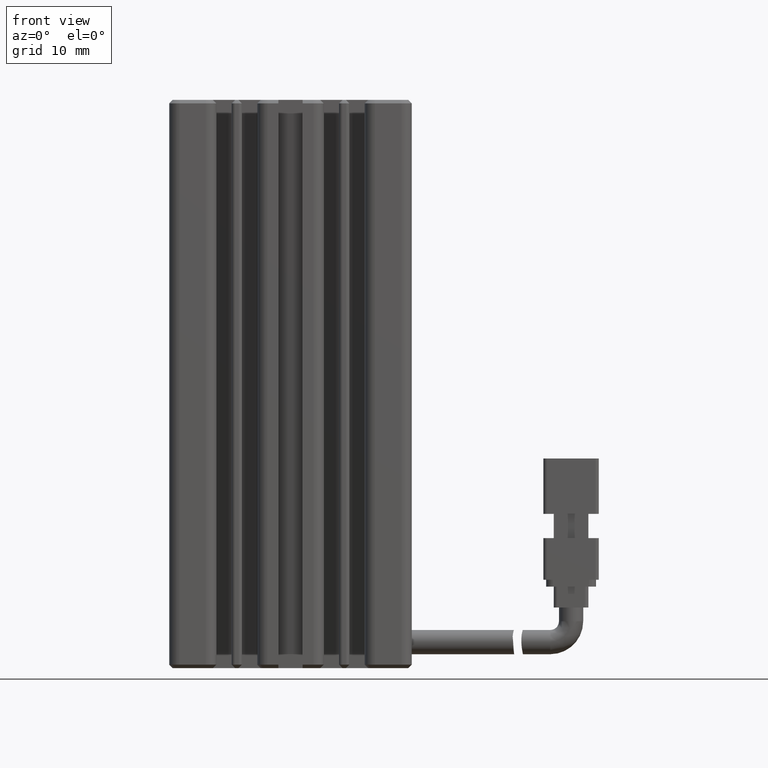
[diagram: clean part render]
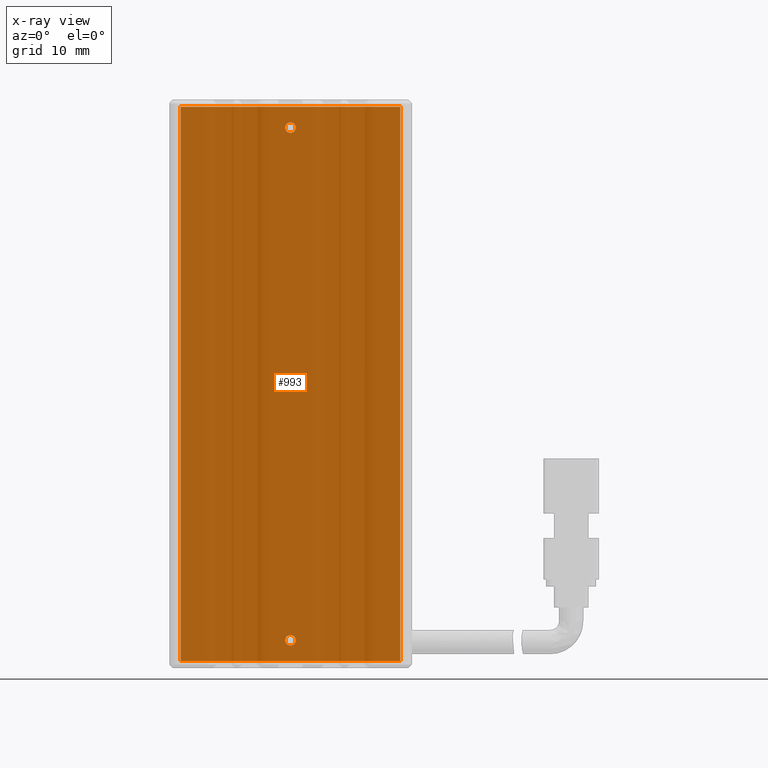
[diagram: x-ray — body ghosted, one internal face saturated and labeled with its STEP entity id]
A machine part, front view, then the same camera in x-ray: the body is ghosted and one INTERNAL B-rep face — a face not visible from any outside direction — is saturated and labeled: STEP entity #993.
In plain terms, the highlighted planar face has unit normal (0, 1, 0).
Its self-contained STEP definition (entity closure, byte-faithful):
#993 = ADVANCED_FACE ( 'NONE', ( #21589, #29354, #12485 ), #25382, .F. ) ;
#1229 = EDGE_LOOP ( 'NONE', ( #16270, #18755 ) ) ;
#1650 = DIRECTION ( 'NONE',  ( -1.387778780781445400E-016, 0.0000000000000000000, 1.000000000000000000 ) ) ;
#1944 = DIRECTION ( 'NONE',  ( -1.000000000000000000, -0.0000000000000000000, -1.387778780781445400E-016 ) ) ;
#1995 = DIRECTION ( 'NONE',  ( 0.0000000000000000000, 0.0000000000000000000, 1.000000000000000000 ) ) ;
#3047 = DIRECTION ( 'NONE',  ( 0.0000000000000000000, 0.0000000000000000000, 1.000000000000000000 ) ) ;
#3816 = DIRECTION ( 'NONE',  ( 0.0000000000000000000, 0.0000000000000000000, 1.000000000000000000 ) ) ;
#3878 = LINE ( 'NONE', #22450, #22162 ) ;
#4728 = EDGE_CURVE ( 'NONE', #31331, #16899, #29063, .T. ) ;
#4732 = EDGE_CURVE ( 'NONE', #16899, #28142, #3878, .T. ) ;
#5820 = CARTESIAN_POINT ( 'NONE',  ( 40.92537974683541100, 31.49073232304837300, -78.75000000000001400 ) ) ;
#7388 = ORIENTED_EDGE ( 'NONE', *, *, #4732, .F. ) ;
#7570 = DIRECTION ( 'NONE',  ( 1.387778780781445400E-016, -0.0000000000000000000, -1.000000000000000000 ) ) ;
#7911 = VECTOR ( 'NONE', #17726, 1000.000000000000000 ) ;
#8915 = AXIS2_PLACEMENT_3D ( 'NONE', #19831, #17086, #1995 ) ;
#9250 = EDGE_CURVE ( 'NONE', #20897, #16508, #37819, .T. ) ;
#9269 = AXIS2_PLACEMENT_3D ( 'NONE', #23536, #29050, #3047 ) ;
#9963 = CARTESIAN_POINT ( 'NONE',  ( 40.92537974683541100, 31.49073232304837300, -78.00000000000001400 ) ) ;
#11211 = CIRCLE ( 'NONE', #28249, 0.7500000000000006700 ) ;
#11361 = ORIENTED_EDGE ( 'NONE', *, *, #26089, .F. ) ;
#12195 = CIRCLE ( 'NONE', #8915, 0.7500000000000006700 ) ;
#12485 = FACE_BOUND ( 'NONE', #1229, .T. ) ;
#12813 = VERTEX_POINT ( 'NONE', #30900 ) ;
#13092 = CARTESIAN_POINT ( 'NONE',  ( 40.92537974683541800, 31.49073232304837300, -152.0000000000000300 ) ) ;
#13632 = CARTESIAN_POINT ( 'NONE',  ( 56.77537974683542600, 31.49073232304837300, -155.0000000000000300 ) ) ;
#14552 = VERTEX_POINT ( 'NONE', #5820 ) ;
#14741 = ORIENTED_EDGE ( 'NONE', *, *, #19866, .F. ) ;
#16101 = DIRECTION ( 'NONE',  ( 0.0000000000000000000, 0.0000000000000000000, 1.000000000000000000 ) ) ;
#16270 = ORIENTED_EDGE ( 'NONE', *, *, #25706, .F. ) ;
#16508 = VERTEX_POINT ( 'NONE', #28709 ) ;
#16899 = VERTEX_POINT ( 'NONE', #35643 ) ;
#17086 = DIRECTION ( 'NONE',  ( -0.0000000000000000000, -1.000000000000000000, -0.0000000000000000000 ) ) ;
#17437 = VERTEX_POINT ( 'NONE', #29054 ) ;
#17726 = DIRECTION ( 'NONE',  ( 1.000000000000000000, 0.0000000000000000000, 1.387778780781445400E-016 ) ) ;
#17840 = CIRCLE ( 'NONE', #20224, 0.7500000000000006700 ) ;
#18755 = ORIENTED_EDGE ( 'NONE', *, *, #9250, .F. ) ;
#19148 = ORIENTED_EDGE ( 'NONE', *, *, #27734, .F. ) ;
#19831 = CARTESIAN_POINT ( 'NONE',  ( 40.92537974683541100, 31.49073232304837300, -78.00000000000001400 ) ) ;
#19866 = EDGE_CURVE ( 'NONE', #14552, #17437, #12195, .T. ) ;
#20224 = AXIS2_PLACEMENT_3D ( 'NONE', #9963, #24680, #3816 ) ;
#20492 = AXIS2_PLACEMENT_3D ( 'NONE', #31013, #34225, #1650 ) ;
#20813 = ORIENTED_EDGE ( 'NONE', *, *, #4728, .F. ) ;
#20897 = VERTEX_POINT ( 'NONE', #37070 ) ;
#20968 = CARTESIAN_POINT ( 'NONE',  ( 56.77537974683541200, 31.49073232304837300, -75.00000000000001400 ) ) ;
#21283 = VECTOR ( 'NONE', #1944, 1000.000000000000000 ) ;
#21512 = CARTESIAN_POINT ( 'NONE',  ( 25.07537974683541600, 31.49073232304837300, -75.00000000000001400 ) ) ;
#21589 = FACE_OUTER_BOUND ( 'NONE', #33675, .T. ) ;
#22162 = VECTOR ( 'NONE', #22693, 1000.000000000000000 ) ;
#22450 = CARTESIAN_POINT ( 'NONE',  ( 25.07537974683540900, 31.49073232304837300, -75.00000000000001400 ) ) ;
#22693 = DIRECTION ( 'NONE',  ( -1.387778780781445400E-016, 0.0000000000000000000, 1.000000000000000000 ) ) ;
#23536 = CARTESIAN_POINT ( 'NONE',  ( 40.92537974683541800, 31.49073232304837300, -152.0000000000000300 ) ) ;
#23911 = VECTOR ( 'NONE', #7570, 1000.000000000000000 ) ;
#24196 = EDGE_LOOP ( 'NONE', ( #31769, #14741 ) ) ;
#24588 = DIRECTION ( 'NONE',  ( -0.0000000000000000000, -1.000000000000000000, -0.0000000000000000000 ) ) ;
#24680 = DIRECTION ( 'NONE',  ( -0.0000000000000000000, -1.000000000000000000, -0.0000000000000000000 ) ) ;
#24684 = CARTESIAN_POINT ( 'NONE',  ( 56.77537974683541900, 31.49073232304837300, -155.0000000000000300 ) ) ;
#25382 = PLANE ( 'NONE',  #20492 ) ;
#25706 = EDGE_CURVE ( 'NONE', #16508, #20897, #11211, .T. ) ;
#26089 = EDGE_CURVE ( 'NONE', #28142, #12813, #34075, .T. ) ;
#27091 = EDGE_CURVE ( 'NONE', #17437, #14552, #17840, .T. ) ;
#27094 = LINE ( 'NONE', #30780, #23911 ) ;
#27734 = EDGE_CURVE ( 'NONE', #12813, #31331, #27094, .T. ) ;
#28142 = VERTEX_POINT ( 'NONE', #21512 ) ;
#28249 = AXIS2_PLACEMENT_3D ( 'NONE', #13092, #24588, #16101 ) ;
#28709 = CARTESIAN_POINT ( 'NONE',  ( 40.92537974683541800, 31.49073232304837300, -151.2500000000000300 ) ) ;
#29050 = DIRECTION ( 'NONE',  ( -0.0000000000000000000, -1.000000000000000000, -0.0000000000000000000 ) ) ;
#29054 = CARTESIAN_POINT ( 'NONE',  ( 40.92537974683541100, 31.49073232304837300, -77.25000000000001400 ) ) ;
#29063 = LINE ( 'NONE', #13632, #21283 ) ;
#29354 = FACE_BOUND ( 'NONE', #24196, .T. ) ;
#30780 = CARTESIAN_POINT ( 'NONE',  ( 56.77537974683541200, 31.49073232304837300, -75.00000000000001400 ) ) ;
#30900 = CARTESIAN_POINT ( 'NONE',  ( 56.77537974683541200, 31.49073232304837300, -75.00000000000001400 ) ) ;
#31013 = CARTESIAN_POINT ( 'NONE',  ( 56.77537974683541200, 31.49073232304837300, -75.00000000000001400 ) ) ;
#31331 = VERTEX_POINT ( 'NONE', #24684 ) ;
#31769 = ORIENTED_EDGE ( 'NONE', *, *, #27091, .F. ) ;
#33675 = EDGE_LOOP ( 'NONE', ( #7388, #20813, #19148, #11361 ) ) ;
#34075 = LINE ( 'NONE', #20968, #7911 ) ;
#34225 = DIRECTION ( 'NONE',  ( 0.0000000000000000000, 1.000000000000000000, 0.0000000000000000000 ) ) ;
#35643 = CARTESIAN_POINT ( 'NONE',  ( 25.07537974683541600, 31.49073232304837300, -155.0000000000000300 ) ) ;
#37070 = CARTESIAN_POINT ( 'NONE',  ( 40.92537974683541800, 31.49073232304837300, -152.7500000000000300 ) ) ;
#37819 = CIRCLE ( 'NONE', #9269, 0.7500000000000006700 ) ;